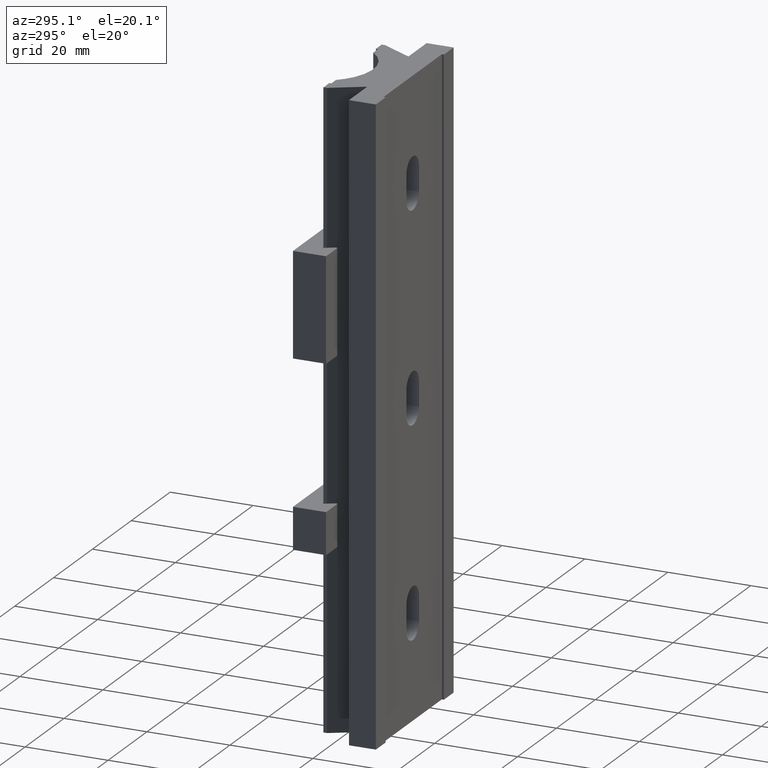
[diagram: clean part render]
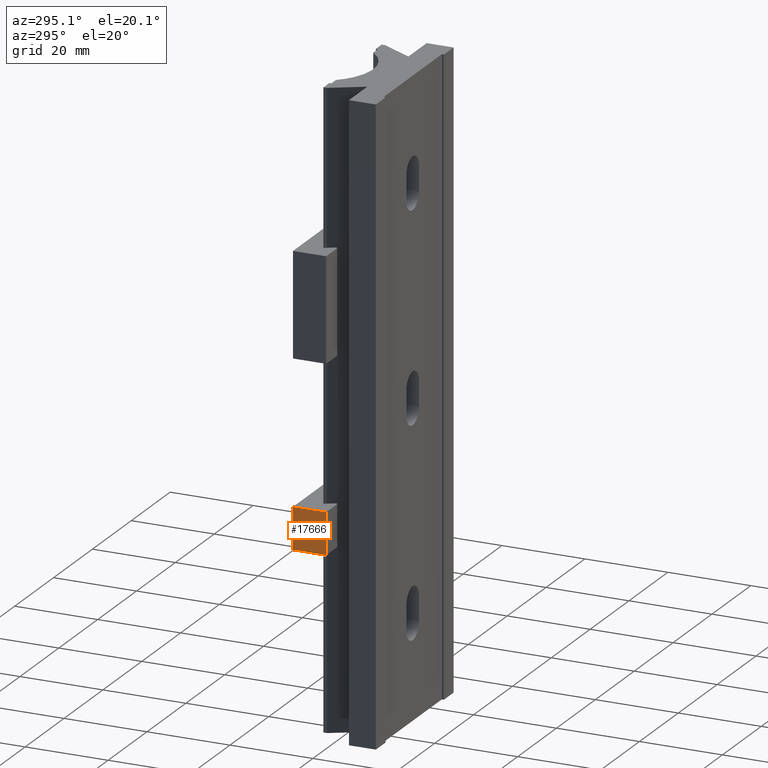
[diagram: same view with one face highlighted and labeled with its STEP entity id]
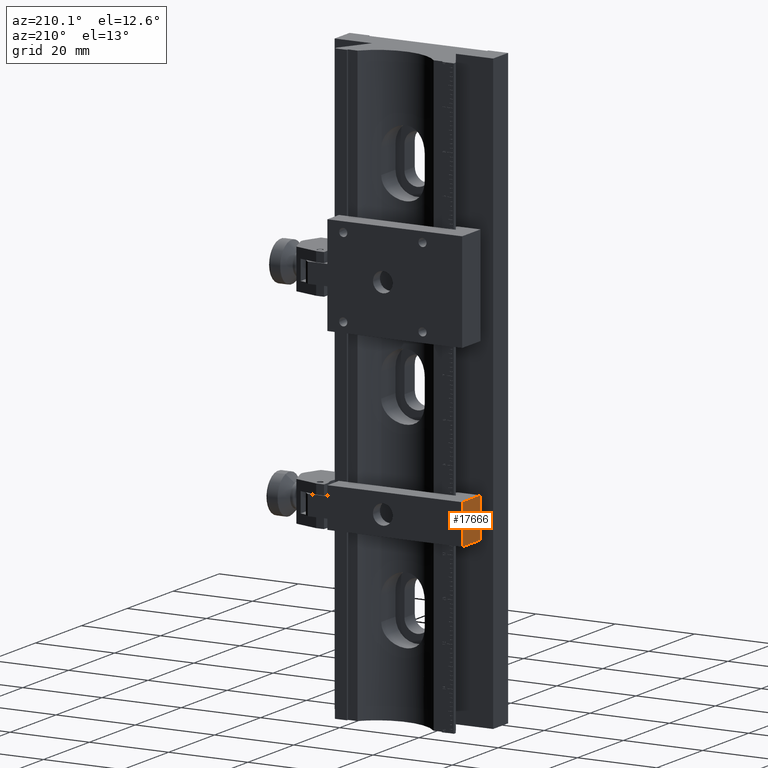
[diagram: same view with one face highlighted and labeled with its STEP entity id]
A machine part, auxiliary view. The second image highlights one B-rep face of the part: STEP entity #17666.
A second angle (auxiliary view) of the same face is appended — the face is thin or edge-on in the first view.
In plain terms, the highlighted planar face has unit normal (1, 0, 0).
Its self-contained STEP definition (entity closure, byte-faithful):
#1246 = LINE ( 'NONE', #33715, #22298 ) ;
#5226 = DIRECTION ( 'NONE',  ( 0.000000000000000000, 0.000000000000000000, -1.000000000000000000 ) ) ;
#6992 = FACE_OUTER_BOUND ( 'NONE', #16971, .T. ) ;
#7097 = VECTOR ( 'NONE', #42910, 1000.000000000000000 ) ;
#12644 = AXIS2_PLACEMENT_3D ( 'NONE', #23106, #20116, #16398 ) ;
#13122 = VECTOR ( 'NONE', #15434, 1000.000000000000000 ) ;
#15353 = EDGE_CURVE ( 'NONE', #39760, #17772, #1246, .T. ) ;
#15434 = DIRECTION ( 'NONE',  ( 0.000000000000000000, -1.000000000000000000, 0.000000000000000000 ) ) ;
#16398 = DIRECTION ( 'NONE',  ( 0.000000000000000000, -1.000000000000000078E-15, -1.000000000000000000 ) ) ;
#16934 = PLANE ( 'NONE',  #12644 ) ;
#16971 = EDGE_LOOP ( 'NONE', ( #49415, #25575, #37236, #23009 ) ) ;
#17085 = CARTESIAN_POINT ( 'NONE',  ( -195.0211503403899940, -0.8657619886940914888, -21.65049300779230279 ) ) ;
#17666 = ADVANCED_FACE ( 'NONE', ( #6992 ), #16934, .F. ) ;
#17772 = VERTEX_POINT ( 'NONE', #36467 ) ;
#18132 = VECTOR ( 'NONE', #5226, 1000.000000000000000 ) ;
#20116 = DIRECTION ( 'NONE',  ( 1.000000000000000000, 0.000000000000000000, 0.000000000000000000 ) ) ;
#21028 = CARTESIAN_POINT ( 'NONE',  ( -195.0211503403899940, -0.8657619886940914888, -21.65049300779230279 ) ) ;
#21628 = VERTEX_POINT ( 'NONE', #21028 ) ;
#22298 = VECTOR ( 'NONE', #29491, 1000.000000000000000 ) ;
#23009 = ORIENTED_EDGE ( 'NONE', *, *, #24459, .T. ) ;
#23106 = CARTESIAN_POINT ( 'NONE',  ( -195.0211503403899940, 7.134238011305916061, -21.65049300779231345 ) ) ;
#24459 = EDGE_CURVE ( 'NONE', #49084, #39760, #30018, .T. ) ;
#25213 = CARTESIAN_POINT ( 'NONE',  ( -195.0211503403899940, 7.134238011305916061, -21.65049300779231345 ) ) ;
#25575 = ORIENTED_EDGE ( 'NONE', *, *, #40097, .F. ) ;
#26830 = CARTESIAN_POINT ( 'NONE',  ( -195.0211503403899940, 7.134238011305916061, -21.65049300779231345 ) ) ;
#27095 = LINE ( 'NONE', #43170, #13122 ) ;
#29491 = DIRECTION ( 'NONE',  ( 0.000000000000000000, -1.000000000000000000, 0.000000000000000000 ) ) ;
#29565 = CARTESIAN_POINT ( 'NONE',  ( -195.0211503403899940, 7.134238011305916061, -31.65049300779228147 ) ) ;
#30018 = LINE ( 'NONE', #26830, #7097 ) ;
#33715 = CARTESIAN_POINT ( 'NONE',  ( -195.0211503403899940, 7.134238011305916061, -31.65049300779228147 ) ) ;
#36467 = CARTESIAN_POINT ( 'NONE',  ( -195.0211503403899940, -0.8657619886940914888, -31.65049300779228147 ) ) ;
#37236 = ORIENTED_EDGE ( 'NONE', *, *, #41450, .F. ) ;
#39760 = VERTEX_POINT ( 'NONE', #29565 ) ;
#40097 = EDGE_CURVE ( 'NONE', #21628, #17772, #41107, .T. ) ;
#41107 = LINE ( 'NONE', #17085, #18132 ) ;
#41450 = EDGE_CURVE ( 'NONE', #49084, #21628, #27095, .T. ) ;
#42910 = DIRECTION ( 'NONE',  ( 0.000000000000000000, 0.000000000000000000, -1.000000000000000000 ) ) ;
#43170 = CARTESIAN_POINT ( 'NONE',  ( -195.0211503403899940, 7.134238011305916061, -21.65049300779231345 ) ) ;
#49084 = VERTEX_POINT ( 'NONE', #25213 ) ;
#49415 = ORIENTED_EDGE ( 'NONE', *, *, #15353, .T. ) ;